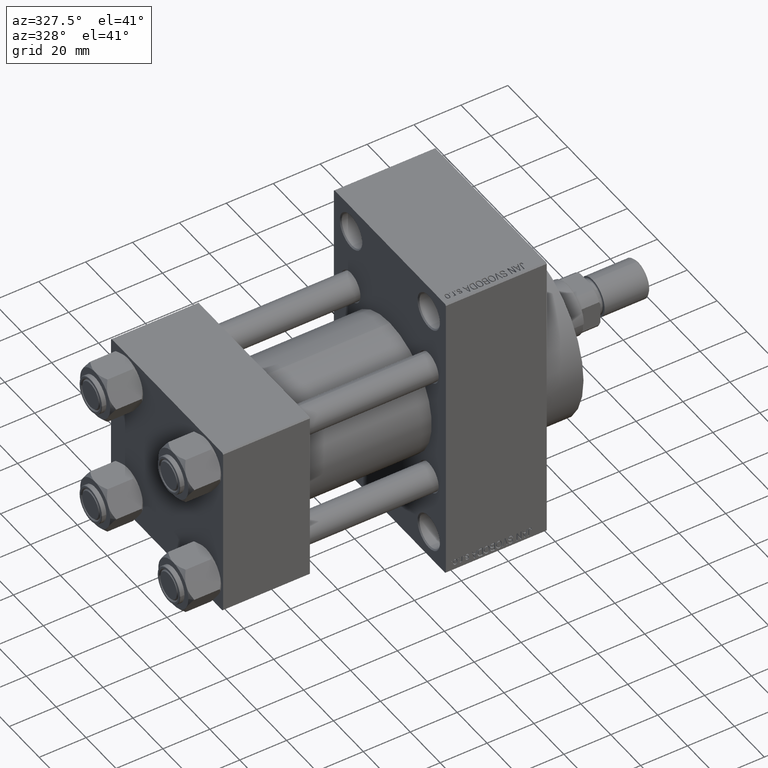
[diagram: clean part render]
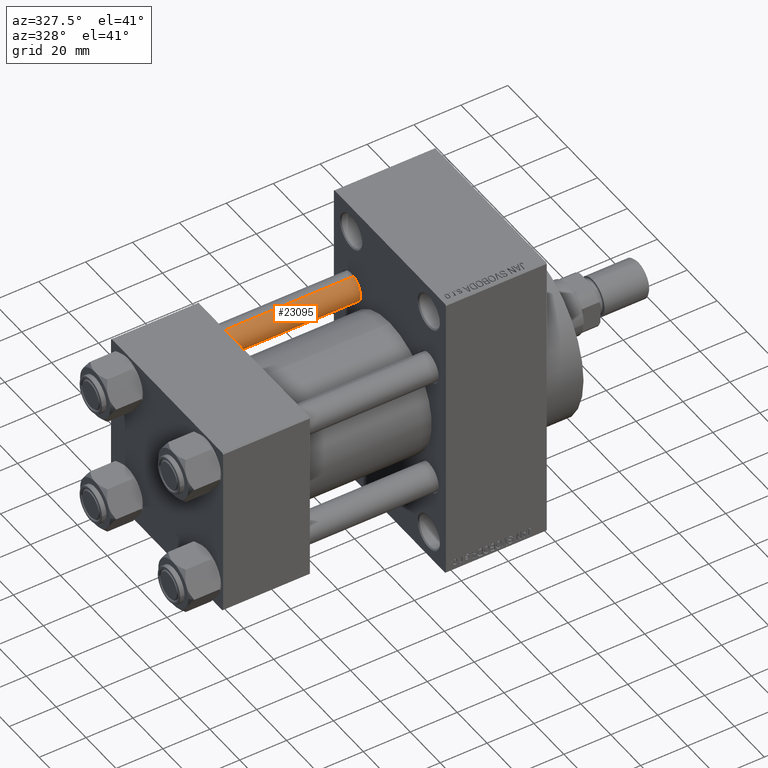
[diagram: same view with one face highlighted and labeled with its STEP entity id]
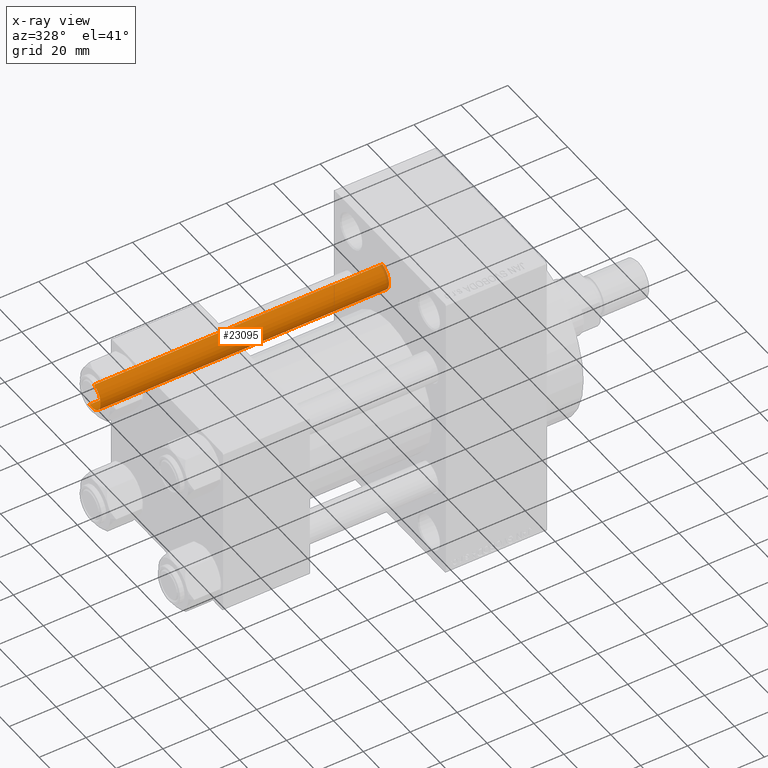
[diagram: x-ray of the same camera — body ghosted, the highlighted face saturated]
A machine part, auxiliary view. The second image highlights one B-rep face of the part: STEP entity #23095.
The next image is the same camera in x-ray: the body ghosted, the highlighted face saturated — about 1% of this face is hidden behind the body in this view.
In plain terms, the highlighted cylindrical surface (edge-blend (fillet) strip) has radius 6 mm, axis along (-1, -0, 0).
Its self-contained STEP definition (entity closure, byte-faithful):
#2089 = DIRECTION ( 'NONE',  ( -0.000000000000000000, -0.000000000000000000, -1.000000000000000000 ) ) ;
#2328 = CARTESIAN_POINT ( 'NONE',  ( -6.000000000000000888, 0.000000000000000000, 124.0000000000000000 ) ) ;
#2750 = VERTEX_POINT ( 'NONE', #39087 ) ;
#4445 = CYLINDRICAL_SURFACE ( 'NONE', #10759, 6.000000000000000888 ) ;
#5394 = DIRECTION ( 'NONE',  ( -0.000000000000000000, -0.000000000000000000, -1.000000000000000000 ) ) ;
#6761 = VECTOR ( 'NONE', #2089, 1000.000000000000000 ) ;
#6886 = ORIENTED_EDGE ( 'NONE', *, *, #37283, .F. ) ;
#7507 = EDGE_CURVE ( 'NONE', #23449, #25706, #10220, .T. ) ;
#8999 = CIRCLE ( 'NONE', #43643, 6.000000000000000888 ) ;
#10220 = CIRCLE ( 'NONE', #14848, 6.000000000000000888 ) ;
#10759 = AXIS2_PLACEMENT_3D ( 'NONE', #19187, #19893, #33861 ) ;
#12713 = DIRECTION ( 'NONE',  ( -0.000000000000000000, -0.000000000000000000, 1.000000000000000000 ) ) ;
#14646 = ORIENTED_EDGE ( 'NONE', *, *, #18902, .T. ) ;
#14848 = AXIS2_PLACEMENT_3D ( 'NONE', #23781, #12713, #24740 ) ;
#17003 = EDGE_CURVE ( 'NONE', #37141, #2750, #8999, .T. ) ;
#17534 = DIRECTION ( 'NONE',  ( 0.000000000000000000, 0.000000000000000000, -1.000000000000000000 ) ) ;
#17612 = ORIENTED_EDGE ( 'NONE', *, *, #17003, .T. ) ;
#18029 = ORIENTED_EDGE ( 'NONE', *, *, #7507, .T. ) ;
#18902 = EDGE_CURVE ( 'NONE', #2750, #23449, #20442, .T. ) ;
#19187 = CARTESIAN_POINT ( 'NONE',  ( 0.000000000000000000, 0.000000000000000000, 124.0000000000000000 ) ) ;
#19893 = DIRECTION ( 'NONE',  ( -0.000000000000000000, -0.000000000000000000, -1.000000000000000000 ) ) ;
#20442 = LINE ( 'NONE', #2328, #6761 ) ;
#20849 = LINE ( 'NONE', #23735, #23430 ) ;
#23095 = ADVANCED_FACE ( 'NONE', ( #37494 ), #4445, .T. ) ;
#23430 = VECTOR ( 'NONE', #5394, 1000.000000000000000 ) ;
#23449 = VERTEX_POINT ( 'NONE', #41600 ) ;
#23735 = CARTESIAN_POINT ( 'NONE',  ( 6.000000000000000888, 7.347880794884120722E-16, 124.0000000000000000 ) ) ;
#23781 = CARTESIAN_POINT ( 'NONE',  ( 0.000000000000000000, 0.000000000000000000, 0.4999999999999865663 ) ) ;
#24609 = EDGE_LOOP ( 'NONE', ( #6886, #17612, #14646, #18029 ) ) ;
#24740 = DIRECTION ( 'NONE',  ( 1.000000000000000000, 0.000000000000000000, 0.000000000000000000 ) ) ;
#25231 = DIRECTION ( 'NONE',  ( 1.000000000000000000, 0.000000000000000000, 0.000000000000000000 ) ) ;
#25706 = VERTEX_POINT ( 'NONE', #47556 ) ;
#33861 = DIRECTION ( 'NONE',  ( -1.000000000000000000, 0.000000000000000000, 0.000000000000000000 ) ) ;
#35538 = CARTESIAN_POINT ( 'NONE',  ( 6.000000000000000888, 7.347880794884120722E-16, 123.5000000000000426 ) ) ;
#37141 = VERTEX_POINT ( 'NONE', #35538 ) ;
#37283 = EDGE_CURVE ( 'NONE', #37141, #25706, #20849, .T. ) ;
#37494 = FACE_OUTER_BOUND ( 'NONE', #24609, .T. ) ;
#39087 = CARTESIAN_POINT ( 'NONE',  ( -6.000000000000000888, 0.000000000000000000, 123.5000000000000426 ) ) ;
#41600 = CARTESIAN_POINT ( 'NONE',  ( -6.000000000000000888, 0.000000000000000000, 0.4999999999999865663 ) ) ;
#43643 = AXIS2_PLACEMENT_3D ( 'NONE', #47169, #17534, #25231 ) ;
#47169 = CARTESIAN_POINT ( 'NONE',  ( 0.000000000000000000, 0.000000000000000000, 123.5000000000000426 ) ) ;
#47556 = CARTESIAN_POINT ( 'NONE',  ( 6.000000000000000888, 7.347880794884120722E-16, 0.4999999999999865663 ) ) ;